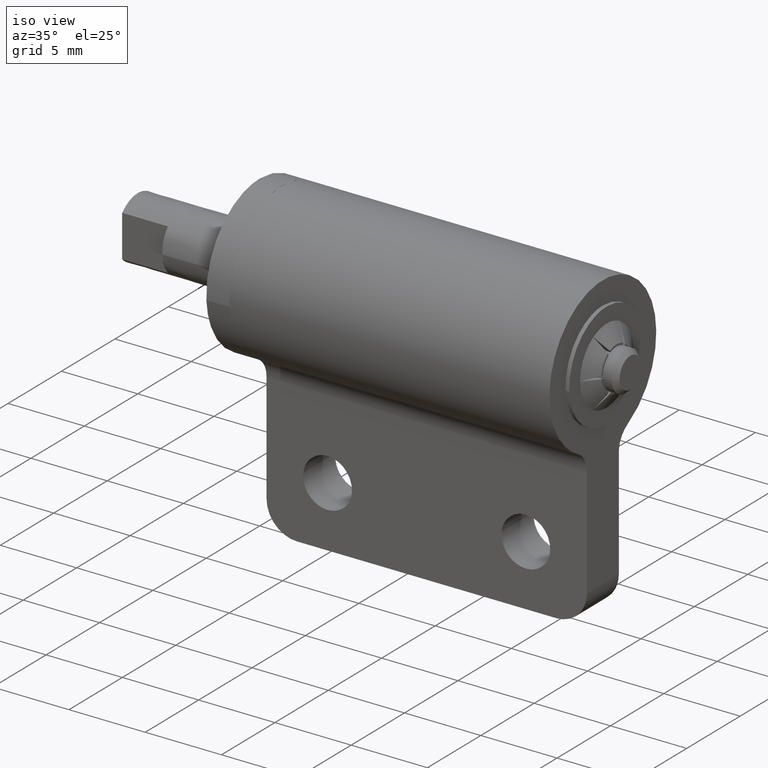
[diagram: clean part render]
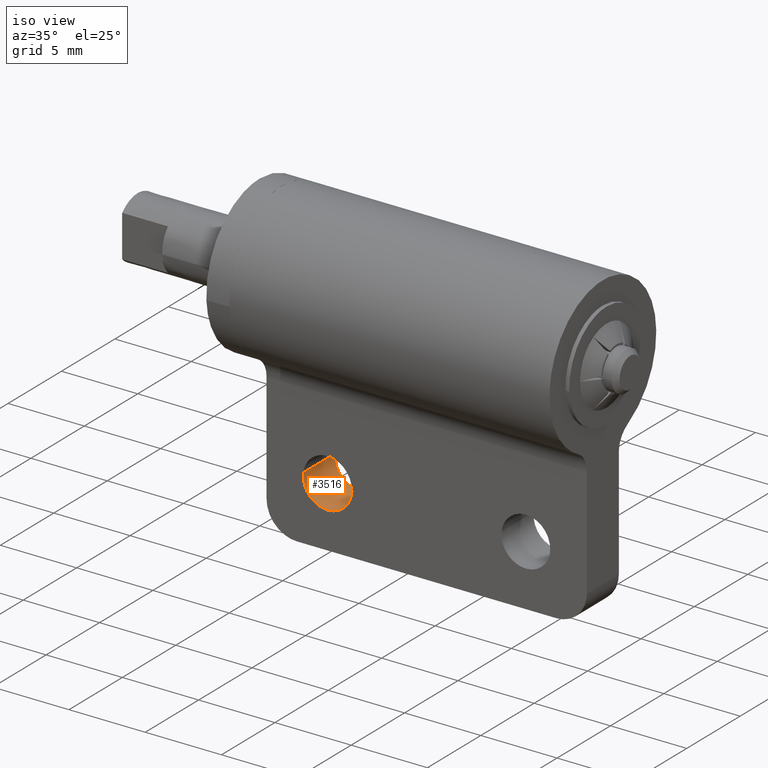
[diagram: same view with one face highlighted and labeled with its STEP entity id]
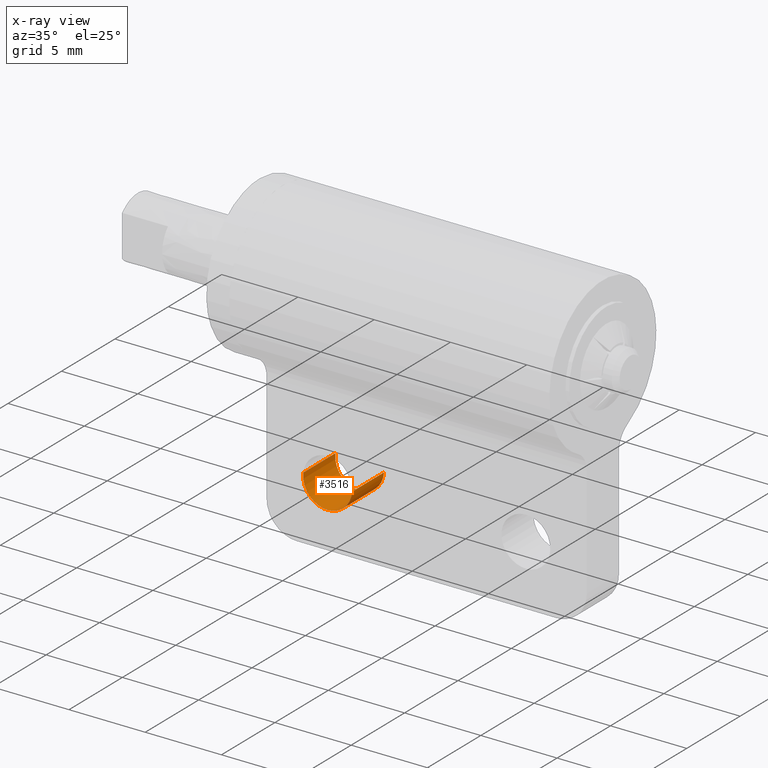
[diagram: x-ray of the same camera — body ghosted, the highlighted face saturated]
A machine part, iso view. The second image highlights one B-rep face of the part: STEP entity #3516.
The next image is the same camera in x-ray: the body ghosted, the highlighted face saturated — about 0% of this face is hidden behind the body in this view.
In plain terms, the highlighted face is a freeform B-spline surface patch.
Its self-contained STEP definition (entity closure, byte-faithful):
#3414=CARTESIAN_POINT('',(8.911184757818136,1.574999999999944,-10.811145224549195));
#3415=CARTESIAN_POINT('',(8.905779815282232,1.574999999999944,-10.856616434179232));
#3416=CARTESIAN_POINT('',(8.902984322525013,1.574999999999944,-10.902322336744231));
#3417=CARTESIAN_POINT('',(8.805306659269242,1.574999999999943,-12.499338014219216));
#3418=CARTESIAN_POINT('',(10.402322336744231,1.574999999999944,-12.597015677474991));
#3419=CARTESIAN_POINT('',(11.999338014219218,1.574999999999943,-12.694693340730758));
#3420=CARTESIAN_POINT('',(12.097015677474991,1.574999999999944,-11.097677663255769));
#3421=CARTESIAN_POINT('',(8.911184757818136,-1.576874999999943,-10.811145224549195));
#3422=CARTESIAN_POINT('',(8.905779815282232,-1.576874999999944,-10.856616434179232));
#3423=CARTESIAN_POINT('',(8.902984322525013,-1.576874999999943,-10.902322336744231));
#3424=CARTESIAN_POINT('',(8.805306659269242,-1.576874999999943,-12.499338014219216));
#3425=CARTESIAN_POINT('',(10.402322336744231,-1.576874999999943,-12.597015677474991));
#3426=CARTESIAN_POINT('',(11.999338014219218,-1.576874999999943,-12.694693340730758));
#3427=CARTESIAN_POINT('',(12.097015677474991,-1.576874999999943,-11.097677663255769));
#3435=(BOUNDED_SURFACE()B_SPLINE_SURFACE(2,1,((#3414,#3421),(#3415,#3422),(#3416,#3423),(#3417,#3424),(#3418,#3425),(#3419,#3426),(#3420,#3427)),.UNSPECIFIED.,.F.,.F.,.U.)B_SPLINE_SURFACE_WITH_KNOTS((3,2,2,3),(2,2),(3.078760800517997,3.141592653589793,4.712388980384690,6.283185307179586),(0.0,3.151874999999887),.UNSPECIFIED.)GEOMETRIC_REPRESENTATION_ITEM()RATIONAL_B_SPLINE_SURFACE(((0.977505800795127,0.977505800795127),(0.988284271247462,0.988284271247462),(1.0,1.0),(0.707106781186548,0.707106781186548),(1.0,1.0),(0.707106781186548,0.707106781186548),(1.0,1.0)))REPRESENTATION_ITEM('')SURFACE());
#3436=CARTESIAN_POINT('',(8.911184757823609,1.499999999999946,-10.811145224503150));
#3437=VERTEX_POINT('',#3436);
#3438=CARTESIAN_POINT('',(10.500000000000000,1.499999999999946,-12.600000000000000));
#3439=VERTEX_POINT('',#3438);
#3440=CARTESIAN_POINT('',(8.911184757823609,1.499999999999946,-10.811145224503155));
#3441=CARTESIAN_POINT('',(8.900000000000002,1.499999999999946,-10.905241408510419));
#3442=CARTESIAN_POINT('',(8.900000000000000,1.499999999999946,-11.0));
#3443=CARTESIAN_POINT('',(8.900000000000002,1.499999999999946,-12.599999999999996));
#3444=CARTESIAN_POINT('',(10.500000000000000,1.499999999999946,-12.600000000000000));
#3452=(BOUNDED_CURVE()B_SPLINE_CURVE(2,(#3440,#3441,#3442,#3443,#3444),.UNSPECIFIED.,.F.,.U.)B_SPLINE_CURVE_WITH_KNOTS((3,2,3),(0.229562473505850,0.250000000000000,0.500000000000000),.UNSPECIFIED.)CURVE()GEOMETRIC_REPRESENTATION_ITEM()RATIONAL_B_SPLINE_CURVE((0.956026754168690,0.976055948322173,1.0,0.707106781186548,1.0))REPRESENTATION_ITEM(''));
#3453=EDGE_CURVE('',#3437,#3439,#3452,.T.);
#3454=ORIENTED_EDGE('',*,*,#3453,.F.);
#3455=CARTESIAN_POINT('',(8.911184757823605,-1.499999999999946,-10.811145224503150));
#3456=VERTEX_POINT('',#3455);
#3457=CARTESIAN_POINT('',(8.911184757823609,1.499999999999946,-10.811145224503150));
#3458=CARTESIAN_POINT('',(8.911184757823605,-1.499999999999946,-10.811145224503150));
#3459=QUASI_UNIFORM_CURVE('',1,(#3457,#3458),.UNSPECIFIED.,.F.,.U.);
#3460=EDGE_CURVE('',#3437,#3456,#3459,.T.);
#3461=ORIENTED_EDGE('',*,*,#3460,.T.);
#3462=CARTESIAN_POINT('',(10.500000000000000,-1.499999999999946,-12.600000000000000));
#3463=VERTEX_POINT('',#3462);
#3464=CARTESIAN_POINT('',(8.911184757823605,-1.499999999999946,-10.811145224503154));
#3465=CARTESIAN_POINT('',(8.900000000000000,-1.499999999999945,-10.905241408510417));
#3466=CARTESIAN_POINT('',(8.900000000000000,-1.499999999999946,-11.0));
#3467=CARTESIAN_POINT('',(8.900000000000002,-1.499999999999946,-12.599999999999996));
#3468=CARTESIAN_POINT('',(10.500000000000000,-1.499999999999946,-12.600000000000000));
#3476=(BOUNDED_CURVE()B_SPLINE_CURVE(2,(#3464,#3465,#3466,#3467,#3468),.UNSPECIFIED.,.F.,.U.)B_SPLINE_CURVE_WITH_KNOTS((3,2,3),(0.229562473505851,0.250000000000000,0.500000000000000),.UNSPECIFIED.)CURVE()GEOMETRIC_REPRESENTATION_ITEM()RATIONAL_B_SPLINE_CURVE((0.956026754168690,0.976055948322173,1.0,0.707106781186548,1.0))REPRESENTATION_ITEM(''));
#3477=EDGE_CURVE('',#3456,#3463,#3476,.T.);
#3478=ORIENTED_EDGE('',*,*,#3477,.T.);
#3479=CARTESIAN_POINT('',(12.097015677473660,-1.499999999999946,-11.097677663277491));
#3480=VERTEX_POINT('',#3479);
#3481=CARTESIAN_POINT('',(10.500000000000000,-1.499999999999946,-12.600000000000000));
#3482=CARTESIAN_POINT('',(12.005129707008097,-1.499999999999946,-12.599999999999996));
#3483=CARTESIAN_POINT('',(12.097015677473667,-1.499999999999946,-11.097677663277484));
#3491=(BOUNDED_CURVE()B_SPLINE_CURVE(2,(#3481,#3482,#3483),.UNSPECIFIED.,.F.,.U.)B_SPLINE_CURVE_WITH_KNOTS((3,3),(0.500000000000000,0.739332962237275),.UNSPECIFIED.)CURVE()GEOMETRIC_REPRESENTATION_ITEM()RATIONAL_B_SPLINE_CURVE((1.0,0.719603993288664,0.976072041663144))REPRESENTATION_ITEM(''));
#3492=EDGE_CURVE('',#3463,#3480,#3491,.T.);
#3493=ORIENTED_EDGE('',*,*,#3492,.T.);
#3494=CARTESIAN_POINT('',(12.097015677473660,1.499999999999946,-11.097677663277491));
#3495=VERTEX_POINT('',#3494);
#3496=CARTESIAN_POINT('',(12.097015677473660,1.499999999999946,-11.097677663277491));
#3497=CARTESIAN_POINT('',(12.097015677473660,-1.499999999999946,-11.097677663277491));
#3498=QUASI_UNIFORM_CURVE('',1,(#3496,#3497),.UNSPECIFIED.,.F.,.U.);
#3499=EDGE_CURVE('',#3495,#3480,#3498,.T.);
#3500=ORIENTED_EDGE('',*,*,#3499,.F.);
#3501=CARTESIAN_POINT('',(10.500000000000000,1.499999999999946,-12.600000000000000));
#3502=CARTESIAN_POINT('',(12.005129707008097,1.499999999999946,-12.599999999999996));
#3503=CARTESIAN_POINT('',(12.097015677473667,1.499999999999946,-11.097677663277484));
#3511=(BOUNDED_CURVE()B_SPLINE_CURVE(2,(#3501,#3502,#3503),.UNSPECIFIED.,.F.,.U.)B_SPLINE_CURVE_WITH_KNOTS((3,3),(0.500000000000000,0.739332962237275),.UNSPECIFIED.)CURVE()GEOMETRIC_REPRESENTATION_ITEM()RATIONAL_B_SPLINE_CURVE((1.0,0.719603993288664,0.976072041663144))REPRESENTATION_ITEM(''));
#3512=EDGE_CURVE('',#3439,#3495,#3511,.T.);
#3513=ORIENTED_EDGE('',*,*,#3512,.F.);
#3514=EDGE_LOOP('',(#3454,#3461,#3478,#3493,#3500,#3513));
#3515=FACE_OUTER_BOUND('',#3514,.T.);
#3516=ADVANCED_FACE('',(#3515),#3435,.F.);